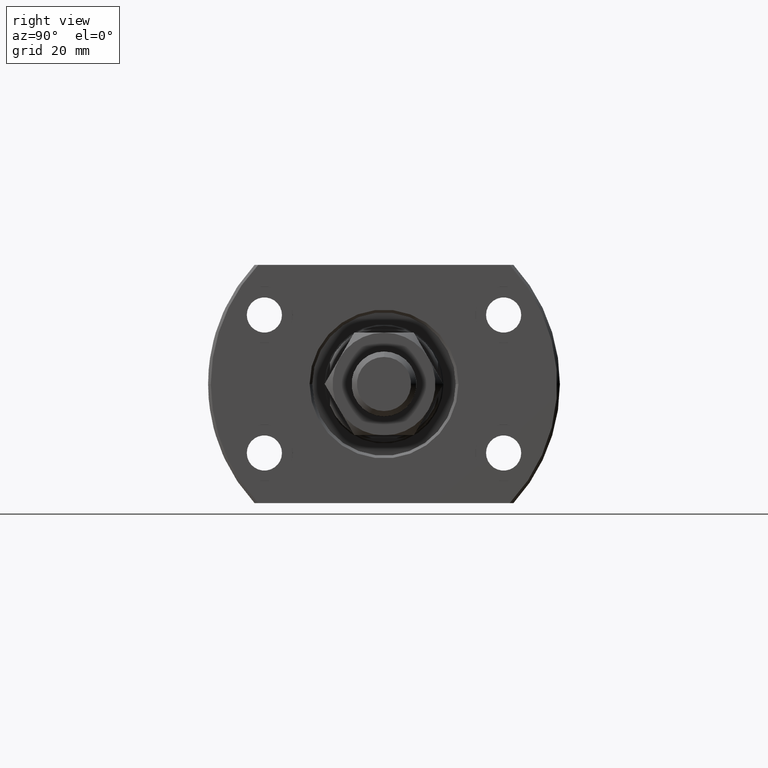
[diagram: clean part render]
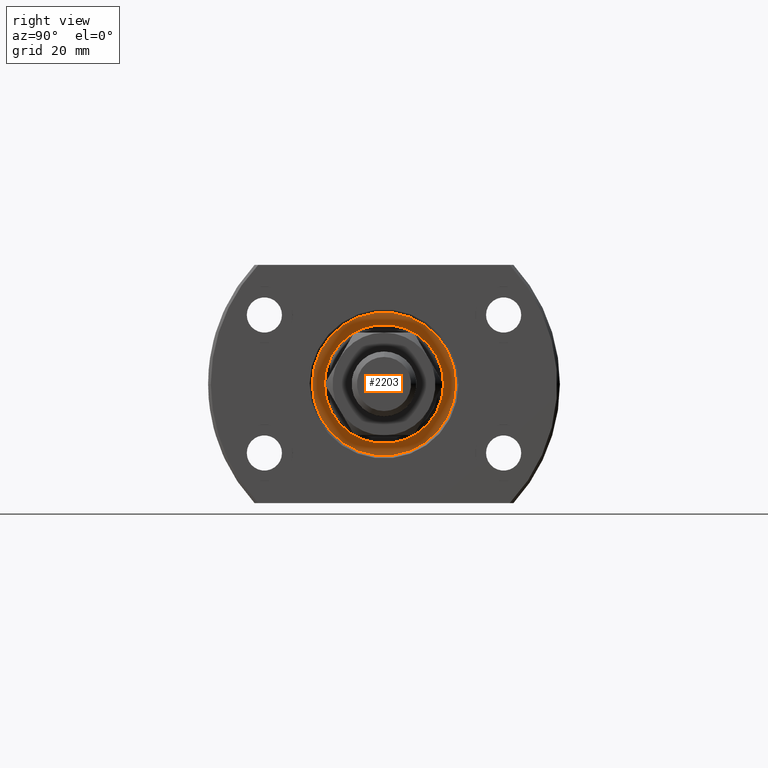
[diagram: same view with one face highlighted and labeled with its STEP entity id]
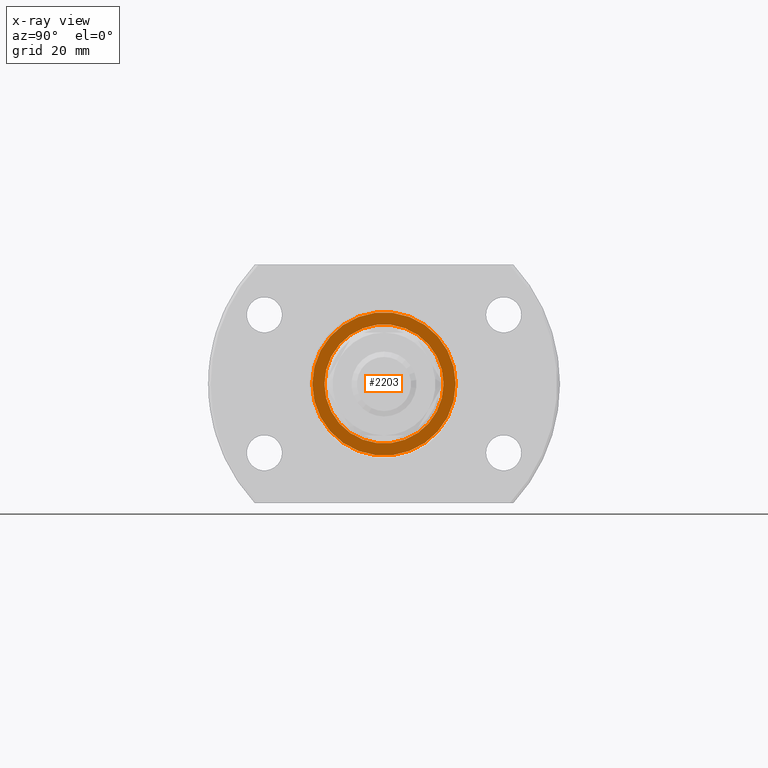
[diagram: x-ray of the same camera — body ghosted, the highlighted face saturated]
A machine part, right view. The second image highlights one B-rep face of the part: STEP entity #2203.
The next image is the same camera in x-ray: the body ghosted, the highlighted face saturated — about 0% of this face is hidden behind the body in this view.
In plain terms, the highlighted planar face has unit normal (1, -0, 0).
Its self-contained STEP definition (entity closure, byte-faithful):
#96 = VERTEX_POINT ( 'NONE', #1165 ) ;
#292 = AXIS2_PLACEMENT_3D ( 'NONE', #438, #1921, #3413 ) ;
#414 = FACE_OUTER_BOUND ( 'NONE', #3273, .T. ) ;
#438 = CARTESIAN_POINT ( 'NONE',  ( 25.50000000000000355, -6.490997275531765407E-13, 0.000000000000000000 ) ) ;
#624 = ORIENTED_EDGE ( 'NONE', *, *, #745, .F. ) ;
#640 = ORIENTED_EDGE ( 'NONE', *, *, #1014, .T. ) ;
#675 = CIRCLE ( 'NONE', #4767, 13.25000000000000178 ) ;
#745 = EDGE_CURVE ( 'NONE', #1751, #4255, #4227, .T. ) ;
#757 = CARTESIAN_POINT ( 'NONE',  ( 25.49999999999968381, -11.00000000000073541, 1.347111479062131595E-15 ) ) ;
#764 = AXIS2_PLACEMENT_3D ( 'NONE', #1006, #3320, #1029 ) ;
#805 = FACE_BOUND ( 'NONE', #2161, .T. ) ;
#1006 = CARTESIAN_POINT ( 'NONE',  ( 25.50000000000000355, -6.490997275531765407E-13, 0.000000000000000000 ) ) ;
#1009 = AXIS2_PLACEMENT_3D ( 'NONE', #2898, #4367, #4007 ) ;
#1014 = EDGE_CURVE ( 'NONE', #96, #1514, #675, .T. ) ;
#1029 = DIRECTION ( 'NONE',  ( 2.880295582753943605E-14, 1.000000000000000000, 0.000000000000000000 ) ) ;
#1165 = CARTESIAN_POINT ( 'NONE',  ( 25.49999999999961986, -13.25000000000065015, 1.622657008870243277E-15 ) ) ;
#1514 = VERTEX_POINT ( 'NONE', #3047 ) ;
#1732 = DIRECTION ( 'NONE',  ( 2.901719268906659254E-14, 1.000000000000000000, 0.000000000000000000 ) ) ;
#1751 = VERTEX_POINT ( 'NONE', #3055 ) ;
#1921 = DIRECTION ( 'NONE',  ( 1.000000000000000000, -2.886466111666351885E-14, 0.000000000000000000 ) ) ;
#1975 = DIRECTION ( 'NONE',  ( 1.000000000000000000, -2.886466111666351885E-14, 0.000000000000000000 ) ) ;
#2083 = CIRCLE ( 'NONE', #764, 13.25000000000000178 ) ;
#2161 = EDGE_LOOP ( 'NONE', ( #624, #4172 ) ) ;
#2203 = ADVANCED_FACE ( 'NONE', ( #805, #414 ), #3767, .T. ) ;
#2310 = CARTESIAN_POINT ( 'NONE',  ( 25.50000000000000355, -6.490997275531765407E-13, 0.000000000000000000 ) ) ;
#2506 = ORIENTED_EDGE ( 'NONE', *, *, #4009, .T. ) ;
#2898 = CARTESIAN_POINT ( 'NONE',  ( 25.50000000000000355, -7.360488584749197812E-13, 0.000000000000000000 ) ) ;
#3047 = CARTESIAN_POINT ( 'NONE',  ( 25.50000000000038369, 13.24999999999935341, 0.000000000000000000 ) ) ;
#3055 = CARTESIAN_POINT ( 'NONE',  ( 25.50000000000031974, 10.99999999999926459, 0.000000000000000000 ) ) ;
#3112 = CIRCLE ( 'NONE', #1009, 11.00000000000000000 ) ;
#3273 = EDGE_LOOP ( 'NONE', ( #2506, #640 ) ) ;
#3320 = DIRECTION ( 'NONE',  ( 1.000000000000000000, -2.886466111666351885E-14, 0.000000000000000000 ) ) ;
#3413 = DIRECTION ( 'NONE',  ( 2.886466111666351885E-14, 1.000000000000000000, 0.000000000000000000 ) ) ;
#3461 = DIRECTION ( 'NONE',  ( 2.880295582753943605E-14, 1.000000000000000000, 0.000000000000000000 ) ) ;
#3534 = DIRECTION ( 'NONE',  ( 1.000000000000000000, -2.886466111666351885E-14, 0.000000000000000000 ) ) ;
#3656 = EDGE_CURVE ( 'NONE', #4255, #1751, #3112, .T. ) ;
#3767 = PLANE ( 'NONE',  #292 ) ;
#3872 = CARTESIAN_POINT ( 'NONE',  ( 25.50000000000000355, -7.360488584749197812E-13, 0.000000000000000000 ) ) ;
#3998 = AXIS2_PLACEMENT_3D ( 'NONE', #3872, #3534, #1732 ) ;
#4007 = DIRECTION ( 'NONE',  ( 2.901719268906659254E-14, 1.000000000000000000, 0.000000000000000000 ) ) ;
#4009 = EDGE_CURVE ( 'NONE', #1514, #96, #2083, .T. ) ;
#4172 = ORIENTED_EDGE ( 'NONE', *, *, #3656, .F. ) ;
#4227 = CIRCLE ( 'NONE', #3998, 11.00000000000000000 ) ;
#4255 = VERTEX_POINT ( 'NONE', #757 ) ;
#4367 = DIRECTION ( 'NONE',  ( 1.000000000000000000, -2.886466111666351885E-14, 0.000000000000000000 ) ) ;
#4767 = AXIS2_PLACEMENT_3D ( 'NONE', #2310, #1975, #3461 ) ;